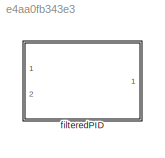
MODEL slx_e4aa0fb343e3
KIND library
CONFIG AbsTol = auto
CONFIG EnableMultiTasking = off
CONFIG FixedStep = auto
CONFIG MaxStep = auto
CONFIG MinStep = auto
CONFIG RelTol = 1e-3
CONFIG SampleTimeConstraint = Unconstrained
CONFIG SolverName = VariableStepAuto
CONFIG StartTime = 0.0
CONFIG StopTime = 10.0
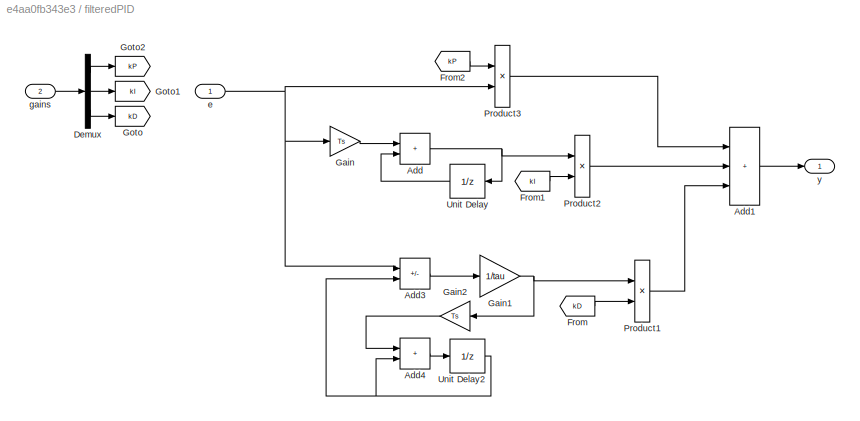
BLOCK [SubSystem] filteredPID
  Ports = [2, 1]
  RequestExecContextInheritance = off
BLOCK [Sum] filteredPID/Add
  IconShape = rectangular
  Ports = [2, 1]
BLOCK [Sum] filteredPID/Add1
  IconShape = rectangular
  Inputs = +++
  Ports = [3, 1]
BLOCK [Sum] filteredPID/Add3
  IconShape = rectangular
  Inputs = +-
  Ports = [2, 1]
BLOCK [Sum] filteredPID/Add4
  IconShape = rectangular
  Ports = [2, 1]
BLOCK [Demux] filteredPID/Demux
  Outputs = 3
  Ports = [1, 3]
BLOCK [From] filteredPID/From
  GotoTag = kD
BLOCK [From] filteredPID/From1
  GotoTag = kI
BLOCK [From] filteredPID/From2
  GotoTag = kP
BLOCK [Gain] filteredPID/Gain
  Gain = Ts
BLOCK [Gain] filteredPID/Gain1
  Gain = 1/tau
BLOCK [Gain] filteredPID/Gain2
  Gain = Ts
BLOCK [Goto] filteredPID/Goto
  GotoTag = kD
BLOCK [Goto] filteredPID/Goto1
  GotoTag = kI
BLOCK [Goto] filteredPID/Goto2
  GotoTag = kP
BLOCK [Product] filteredPID/Product1
  Ports = [2, 1]
BLOCK [Product] filteredPID/Product2
  Ports = [2, 1]
BLOCK [Product] filteredPID/Product3
  Ports = [2, 1]
BLOCK [UnitDelay] filteredPID/Unit Delay
  HasFrameUpgradeWarning = on
  SampleTime = -1
BLOCK [UnitDelay] filteredPID/Unit Delay2
  HasFrameUpgradeWarning = on
  SampleTime = -1
BLOCK [Inport] filteredPID/e
BLOCK [Inport] filteredPID/gains
  Port = 2
BLOCK [Outport] filteredPID/y
LINE filteredPID/Add1:1 -> filteredPID/y:1
LINE filteredPID/Add3:1 -> filteredPID/Gain1:1
LINE filteredPID/Add4:1 -> filteredPID/Unit Delay2:1
NET filteredPID/Add:1 -> filteredPID/Product2:1, filteredPID/Unit Delay:1
LINE filteredPID/Demux:1 -> filteredPID/Goto2:1
LINE filteredPID/Demux:2 -> filteredPID/Goto1:1
LINE filteredPID/Demux:3 -> filteredPID/Goto:1
LINE filteredPID/From1:1 -> filteredPID/Product2:2
LINE filteredPID/From2:1 -> filteredPID/Product3:1
LINE filteredPID/From:1 -> filteredPID/Product1:2
NET filteredPID/Gain1:1 -> filteredPID/Gain2:1, filteredPID/Product1:1
LINE filteredPID/Gain2:1 -> filteredPID/Add4:1
LINE filteredPID/Gain:1 -> filteredPID/Add:1
LINE filteredPID/Product1:1 -> filteredPID/Add1:3
LINE filteredPID/Product2:1 -> filteredPID/Add1:2
LINE filteredPID/Product3:1 -> filteredPID/Add1:1
NET filteredPID/Unit Delay2:1 -> filteredPID/Add3:2, filteredPID/Add4:2
LINE filteredPID/Unit Delay:1 -> filteredPID/Add:2
NET filteredPID/e:1 -> filteredPID/Add3:1, filteredPID/Gain:1, filteredPID/Product3:2
LINE filteredPID/gains:1 -> filteredPID/Demux:1
note: NET lines group one-source signal fan-out (src -> all destinations, sorted); 1:1 wires keep LINE
